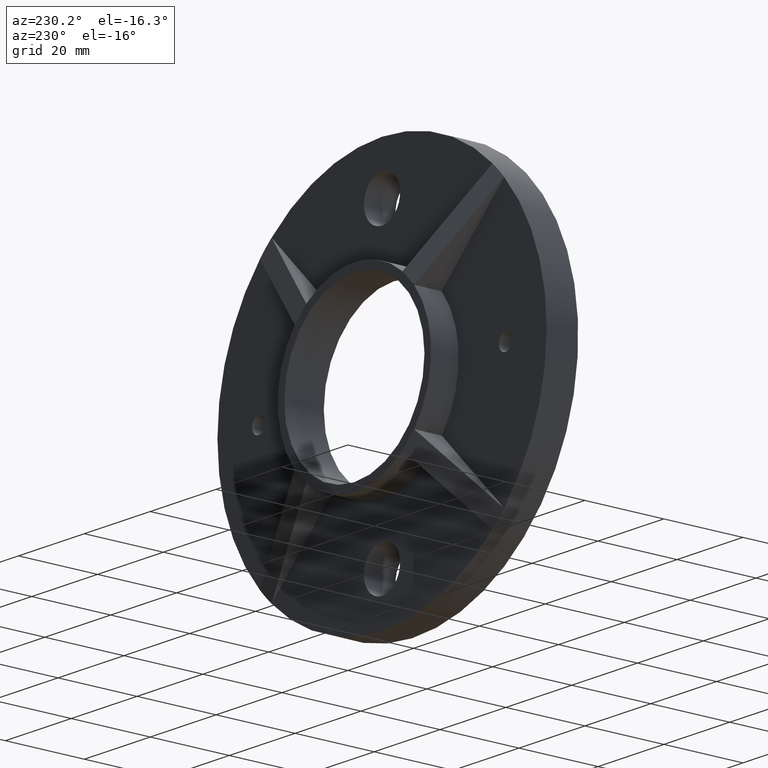
[diagram: clean part render]
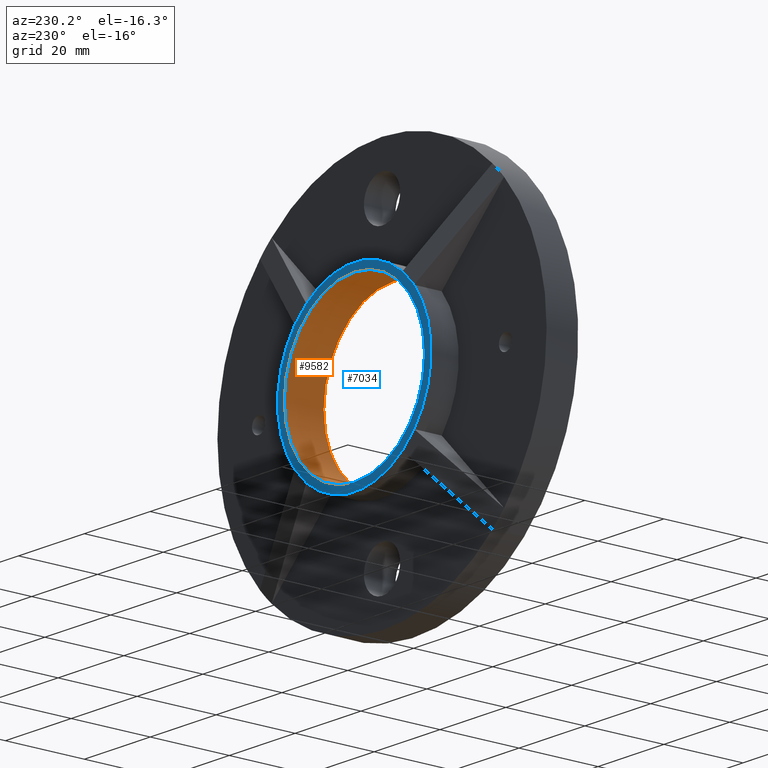
[diagram: same view with the hole feature highlighted: cylindrical wall and planar end face, labeled with their STEP entity ids]
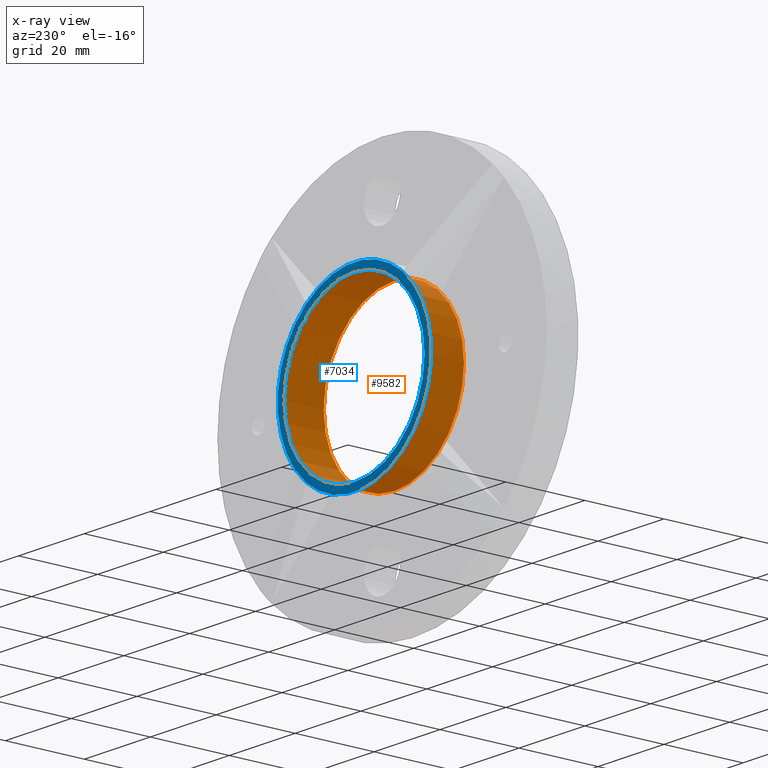
[diagram: x-ray of the same camera — body ghosted, the hole faces saturated]
A machine part, auxiliary view. The highlighted faces form one hole feature of diameter 42.6 mm: the cylindrical wall (entity #9582, orange) and its adjacent planar end face (entity #7034, blue) — they share a circular edge in the B-rep.
The next image is the same camera in x-ray (body ghosted, the hole faces saturated) — the bore reads through the body.
Wall:
#88 = AXIS2_PLACEMENT_3D ( 'NONE', #10443, #8682, #6349 ) ;
#827 = AXIS2_PLACEMENT_3D ( 'NONE', #5215, #3536, #9291 ) ;
#1504 = EDGE_CURVE ( 'NONE', #2211, #2211, #4505, .T. ) ;
#1787 = ORIENTED_EDGE ( 'NONE', *, *, #1504, .F. ) ;
#2211 = VERTEX_POINT ( 'NONE', #5859 ) ;
#2602 = DIRECTION ( 'NONE',  ( 0.000000000000000000, 1.000000000000000000, 0.000000000000000000 ) ) ;
#3323 = DIRECTION ( 'NONE',  ( 0.000000000000000000, 0.000000000000000000, 1.000000000000000000 ) ) ;
#3364 = VERTEX_POINT ( 'NONE', #9283 ) ;
#3536 = DIRECTION ( 'NONE',  ( -0.000000000000000000, 1.000000000000000000, -0.000000000000000000 ) ) ;
#3929 = CIRCLE ( 'NONE', #9872, 21.30000000000000071 ) ;
#4045 = CYLINDRICAL_SURFACE ( 'NONE', #88, 21.30000000000000071 ) ;
#4505 = CIRCLE ( 'NONE', #827, 21.30000000000000071 ) ;
#5215 = CARTESIAN_POINT ( 'NONE',  ( 0.000000000000000000, 5.000000000000000000, 0.000000000000000000 ) ) ;
#5408 = EDGE_LOOP ( 'NONE', ( #6738 ) ) ;
#5858 = EDGE_LOOP ( 'NONE', ( #1787 ) ) ;
#5859 = CARTESIAN_POINT ( 'NONE',  ( 0.000000000000000000, 5.000000000000000000, -21.30000000000000071 ) ) ;
#6349 = DIRECTION ( 'NONE',  ( 0.000000000000000000, 0.000000000000000000, -1.000000000000000000 ) ) ;
#6738 = ORIENTED_EDGE ( 'NONE', *, *, #8650, .T. ) ;
#8650 = EDGE_CURVE ( 'NONE', #3364, #3364, #3929, .T. ) ;
#8682 = DIRECTION ( 'NONE',  ( -0.000000000000000000, -1.000000000000000000, -0.000000000000000000 ) ) ;
#9069 = FACE_OUTER_BOUND ( 'NONE', #5408, .T. ) ;
#9126 = CARTESIAN_POINT ( 'NONE',  ( 0.000000000000000000, 15.00000000000000000, 0.000000000000000000 ) ) ;
#9283 = CARTESIAN_POINT ( 'NONE',  ( 0.000000000000000000, 15.00000000000000000, 21.30000000000000071 ) ) ;
#9291 = DIRECTION ( 'NONE',  ( 0.000000000000000000, 0.000000000000000000, -1.000000000000000000 ) ) ;
#9582 = ADVANCED_FACE ( 'NONE', ( #9069, #10084 ), #4045, .F. ) ;
#9872 = AXIS2_PLACEMENT_3D ( 'NONE', #9126, #2602, #3323 ) ;
#10084 = FACE_OUTER_BOUND ( 'NONE', #5858, .T. ) ;
#10443 = CARTESIAN_POINT ( 'NONE',  ( 0.000000000000000000, 8.000000000000000000, 0.000000000000000000 ) ) ;
End face:
#48 = ORIENTED_EDGE ( 'NONE', *, *, #9935, .F. ) ;
#192 = DIRECTION ( 'NONE',  ( -0.7071067811865535679, -0.000000000000000000, -0.7071067811865415775 ) ) ;
#242 = DIRECTION ( 'NONE',  ( 0.000000000000000000, 0.000000000000000000, 1.000000000000000000 ) ) ;
#263 = CARTESIAN_POINT ( 'NONE',  ( 33.61952381644594823, 15.00000000000000000, 66.38047618355433599 ) ) ;
#379 = CIRCLE ( 'NONE', #3422, 23.30000000000000071 ) ;
#466 = DIRECTION ( 'NONE',  ( 0.000000000000000000, 1.000000000000000000, 0.000000000000000000 ) ) ;
#662 = ORIENTED_EDGE ( 'NONE', *, *, #2432, .T. ) ;
#675 = EDGE_CURVE ( 'NONE', #7292, #6489, #8893, .T. ) ;
#879 = FACE_BOUND ( 'NONE', #10085, .T. ) ;
#1017 = CARTESIAN_POINT ( 'NONE',  ( -66.38047618355467705, 15.00000000000000000, 33.61952381644525900 ) ) ;
#1019 = LINE ( 'NONE', #7356, #9246 ) ;
#1220 = ORIENTED_EDGE ( 'NONE', *, *, #4881, .F. ) ;
#1241 = ORIENTED_EDGE ( 'NONE', *, *, #2641, .F. ) ;
#1326 = ORIENTED_EDGE ( 'NONE', *, *, #2970, .T. ) ;
#1363 = VERTEX_POINT ( 'NONE', #8956 ) ;
#1378 = DIRECTION ( 'NONE',  ( 0.000000000000000000, 0.000000000000000000, 1.000000000000000000 ) ) ;
#1471 = DIRECTION ( 'NONE',  ( 0.000000000000000000, 0.000000000000000000, 1.000000000000000000 ) ) ;
#1549 = DIRECTION ( 'NONE',  ( 0.000000000000000000, 1.000000000000000000, 0.000000000000000000 ) ) ;
#1663 = DIRECTION ( 'NONE',  ( 0.7071067811865486830, -0.000000000000000000, 0.7071067811865464625 ) ) ;
#1769 = EDGE_CURVE ( 'NONE', #7749, #5458, #379, .T. ) ;
#1829 = ORIENTED_EDGE ( 'NONE', *, *, #675, .T. ) ;
#1926 = CARTESIAN_POINT ( 'NONE',  ( -18.14824313652100329, 15.00000000000000000, 14.61270923058822113 ) ) ;
#1952 = DIRECTION ( 'NONE',  ( 0.000000000000000000, 1.000000000000000000, 0.000000000000000000 ) ) ;
#2181 = ORIENTED_EDGE ( 'NONE', *, *, #8650, .F. ) ;
#2270 = DIRECTION ( 'NONE',  ( 0.000000000000000000, -0.000000000000000000, 1.000000000000000000 ) ) ;
#2304 = EDGE_LOOP ( 'NONE', ( #48, #1829, #1241, #662, #1220, #1326, #9563, #9527 ) ) ;
#2395 = VECTOR ( 'NONE', #3632, 1000.000000000000000 ) ;
#2432 = EDGE_CURVE ( 'NONE', #4971, #4442, #6231, .T. ) ;
#2602 = DIRECTION ( 'NONE',  ( 0.000000000000000000, 1.000000000000000000, 0.000000000000000000 ) ) ;
#2641 = EDGE_CURVE ( 'NONE', #4971, #6489, #2879, .T. ) ;
#2824 = DIRECTION ( 'NONE',  ( 0.000000000000000000, 0.000000000000000000, 1.000000000000000000 ) ) ;
#2879 = LINE ( 'NONE', #8369, #7994 ) ;
#2970 = EDGE_CURVE ( 'NONE', #1363, #6883, #9681, .T. ) ;
#2989 = CARTESIAN_POINT ( 'NONE',  ( 0.000000000000000000, 15.00000000000000000, 0.000000000000000000 ) ) ;
#3323 = DIRECTION ( 'NONE',  ( 0.000000000000000000, 0.000000000000000000, 1.000000000000000000 ) ) ;
#3364 = VERTEX_POINT ( 'NONE', #9283 ) ;
#3402 = DIRECTION ( 'NONE',  ( -0.7071067811865489050, -0.000000000000000000, 0.7071067811865462405 ) ) ;
#3422 = AXIS2_PLACEMENT_3D ( 'NONE', #2989, #9470, #1378 ) ;
#3632 = DIRECTION ( 'NONE',  ( 0.7071067811865489050, -0.000000000000000000, -0.7071067811865462405 ) ) ;
#3707 = CARTESIAN_POINT ( 'NONE',  ( 14.61270923058821936, 15.00000000000000000, 18.14824313652100329 ) ) ;
#3929 = CIRCLE ( 'NONE', #9872, 21.30000000000000071 ) ;
#3980 = AXIS2_PLACEMENT_3D ( 'NONE', #6415, #8703, #1471 ) ;
#4063 = AXIS2_PLACEMENT_3D ( 'NONE', #8264, #466, #2824 ) ;
#4442 = VERTEX_POINT ( 'NONE', #5902 ) ;
#4691 = PLANE ( 'NONE',  #7716 ) ;
#4881 = EDGE_CURVE ( 'NONE', #1363, #4442, #1019, .T. ) ;
#4971 = VERTEX_POINT ( 'NONE', #8716 ) ;
#5458 = VERTEX_POINT ( 'NONE', #1926 ) ;
#5761 = LINE ( 'NONE', #1017, #2395 ) ;
#5878 = CARTESIAN_POINT ( 'NONE',  ( -14.61270923058825311, 15.00000000000000000, 18.14824313652095000 ) ) ;
#5902 = CARTESIAN_POINT ( 'NONE',  ( 18.14824313652099974, 15.00000000000000000, -14.61270923058822291 ) ) ;
#6230 = CARTESIAN_POINT ( 'NONE',  ( -14.61270923058822113, 15.00000000000000000, -18.14824313652099974 ) ) ;
#6231 = CIRCLE ( 'NONE', #3980, 23.30000000000000071 ) ;
#6415 = CARTESIAN_POINT ( 'NONE',  ( 0.000000000000000000, 15.00000000000000000, 0.000000000000000000 ) ) ;
#6489 = VERTEX_POINT ( 'NONE', #3707 ) ;
#6883 = VERTEX_POINT ( 'NONE', #6230 ) ;
#7034 = ADVANCED_FACE ( 'NONE', ( #7300, #879 ), #4691, .T. ) ;
#7292 = VERTEX_POINT ( 'NONE', #5878 ) ;
#7300 = FACE_OUTER_BOUND ( 'NONE', #2304, .T. ) ;
#7356 = CARTESIAN_POINT ( 'NONE',  ( -33.61952381644547927, 15.00000000000000000, -66.38047618355454915 ) ) ;
#7431 = CARTESIAN_POINT ( 'NONE',  ( -18.14824313652096421, 14.99999999999999822, -14.61270923058826554 ) ) ;
#7515 = LINE ( 'NONE', #263, #10072 ) ;
#7716 = AXIS2_PLACEMENT_3D ( 'NONE', #8056, #1549, #2270 ) ;
#7749 = VERTEX_POINT ( 'NONE', #7431 ) ;
#7891 = AXIS2_PLACEMENT_3D ( 'NONE', #10079, #1952, #242 ) ;
#7946 = EDGE_CURVE ( 'NONE', #7749, #6883, #5761, .T. ) ;
#7994 = VECTOR ( 'NONE', #3402, 1000.000000000000000 ) ;
#8056 = CARTESIAN_POINT ( 'NONE',  ( 0.000000000000000000, 15.00000000000000000, 0.000000000000000000 ) ) ;
#8264 = CARTESIAN_POINT ( 'NONE',  ( 0.000000000000000000, 15.00000000000000000, 0.000000000000000000 ) ) ;
#8369 = CARTESIAN_POINT ( 'NONE',  ( 66.38047618355467705, 15.00000000000000000, -33.61952381644525900 ) ) ;
#8650 = EDGE_CURVE ( 'NONE', #3364, #3364, #3929, .T. ) ;
#8703 = DIRECTION ( 'NONE',  ( 0.000000000000000000, 1.000000000000000000, 0.000000000000000000 ) ) ;
#8716 = CARTESIAN_POINT ( 'NONE',  ( 18.14824313652096066, 15.00000000000000000, 14.61270923058827620 ) ) ;
#8893 = CIRCLE ( 'NONE', #7891, 23.30000000000000071 ) ;
#8956 = CARTESIAN_POINT ( 'NONE',  ( 14.61270923058825844, 14.99999999999999645, -18.14824313652095711 ) ) ;
#9126 = CARTESIAN_POINT ( 'NONE',  ( 0.000000000000000000, 15.00000000000000000, 0.000000000000000000 ) ) ;
#9246 = VECTOR ( 'NONE', #1663, 999.9999999999998863 ) ;
#9283 = CARTESIAN_POINT ( 'NONE',  ( 0.000000000000000000, 15.00000000000000000, 21.30000000000000071 ) ) ;
#9470 = DIRECTION ( 'NONE',  ( 0.000000000000000000, 1.000000000000000000, 0.000000000000000000 ) ) ;
#9527 = ORIENTED_EDGE ( 'NONE', *, *, #1769, .T. ) ;
#9563 = ORIENTED_EDGE ( 'NONE', *, *, #7946, .F. ) ;
#9681 = CIRCLE ( 'NONE', #4063, 23.30000000000000071 ) ;
#9872 = AXIS2_PLACEMENT_3D ( 'NONE', #9126, #2602, #3323 ) ;
#9935 = EDGE_CURVE ( 'NONE', #7292, #5458, #7515, .T. ) ;
#10072 = VECTOR ( 'NONE', #192, 1000.000000000000000 ) ;
#10079 = CARTESIAN_POINT ( 'NONE',  ( 0.000000000000000000, 15.00000000000000000, 0.000000000000000000 ) ) ;
#10085 = EDGE_LOOP ( 'NONE', ( #2181 ) ) ;